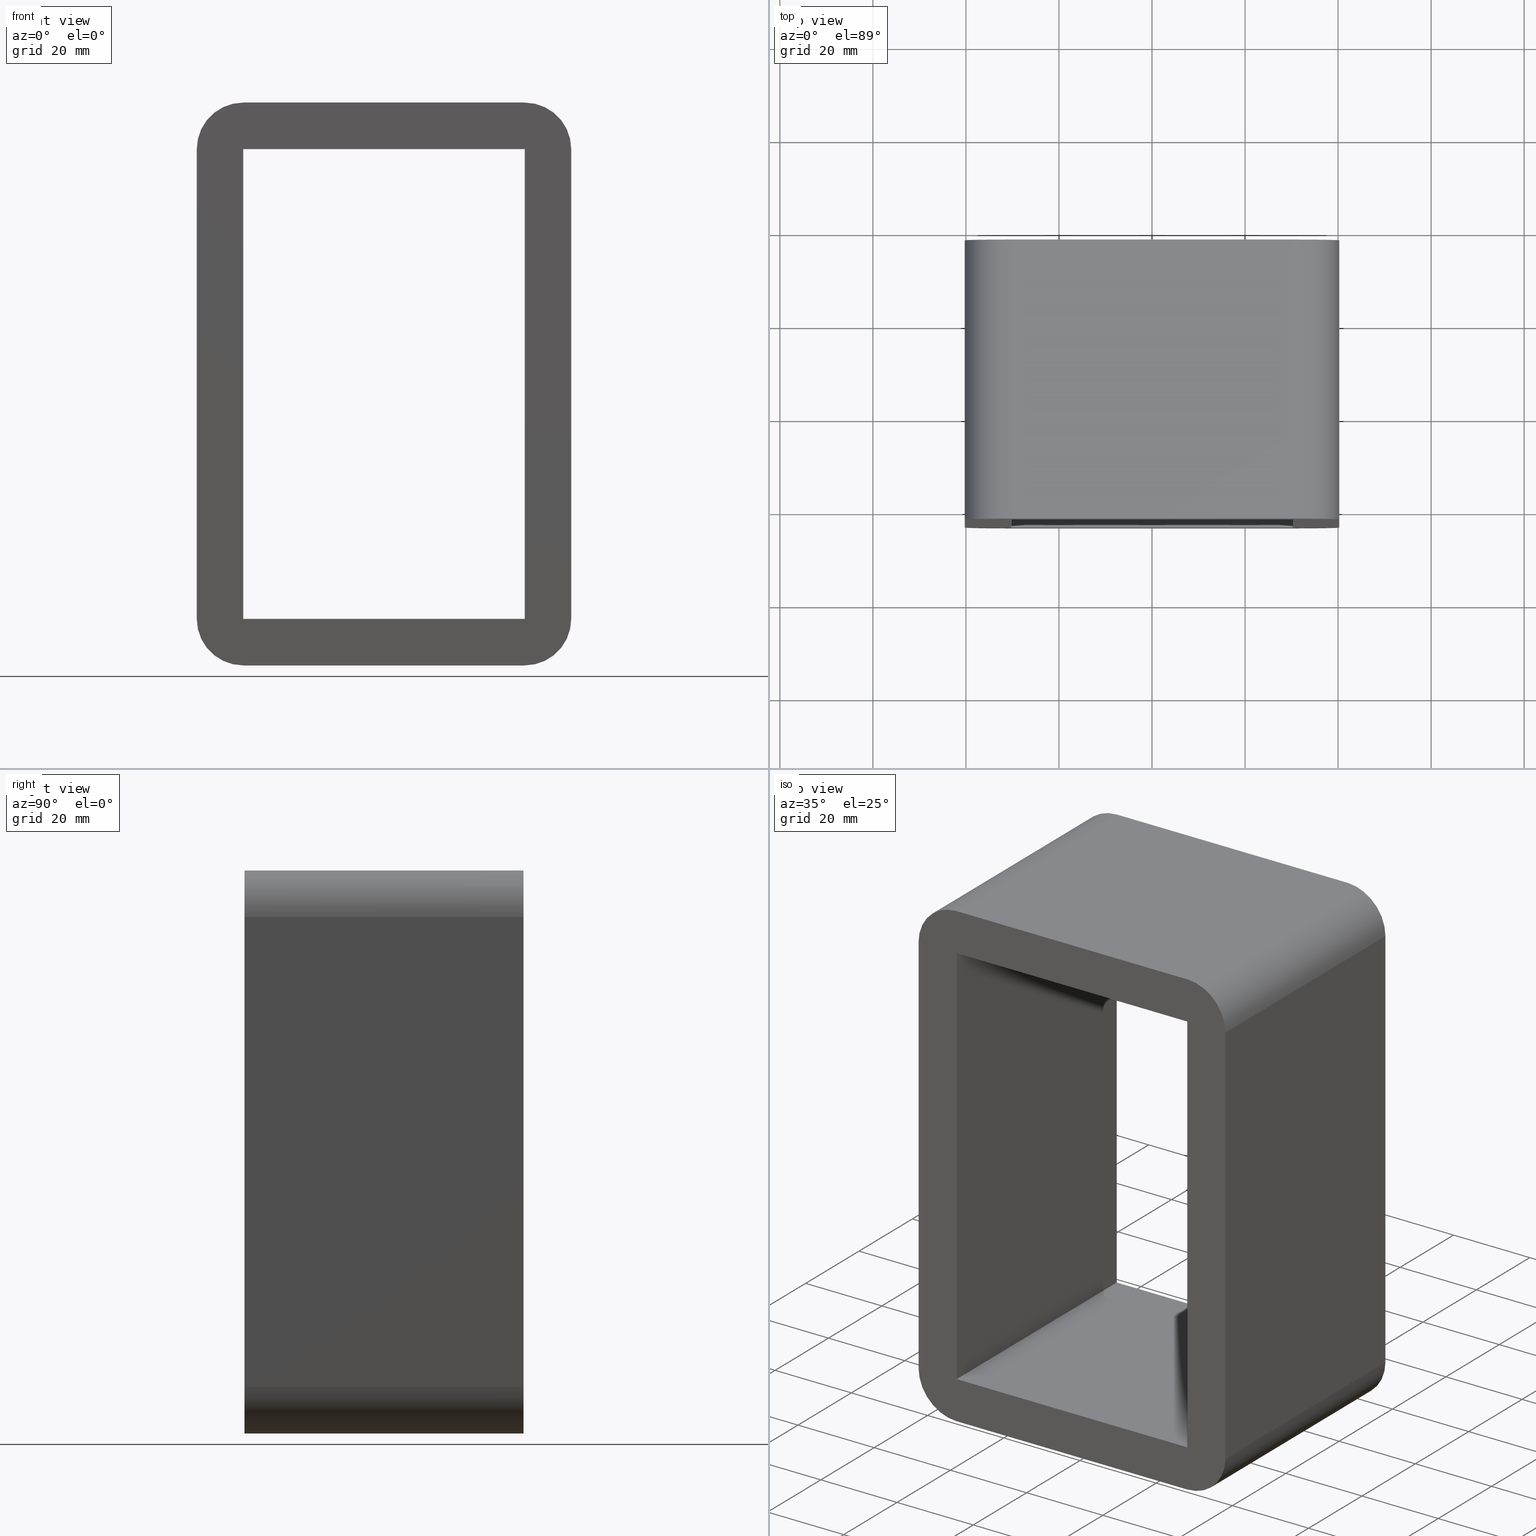
[diagram: canonical four-view strip — front | top / right | iso, engineering-drawing reading convention]
A machine part, canonical four-view strip (front | top / right | iso — engineering-drawing reading convention). The complete STEP part file that produces these views, byte-faithful:
ISO-10303-21;
HEADER;
/****************************************************************
 * Generated by software with PDElib inside                    *
 * PDElib Version v51a, created Wed 11/30/2011                  *
 * ITI Transcendata (http://www.transcendata.com/)              *
 ****************************************************************/
FILE_DESCRIPTION((''),'2;1');
FILE_NAME('C:\\RoxtecConfigurator\\CreatedFiles\\STEP\\S1X1.stp','2013-06-28T14:12:52',(''),(''),'Autodesk Inventor 2013','Autodesk Inventor 2013','');
FILE_SCHEMA(('AUTOMOTIVE_DESIGN { 1 0 10303 214 1 1 1 1 }'));
ENDSEC;
DATA;
#5=APPLICATION_CONTEXT('automotive design');
#6=APPLICATION_PROTOCOL_DEFINITION('International Standard','automotive_design',2001,#5);
#7=PRODUCT_CONTEXT('',#5,'mechanical');
#8=PRODUCT('roxtec S_SF_G','roxtec S_SF_G',$,(#7));
#9=PRODUCT_RELATED_PRODUCT_CATEGORY('part',$,(#8));
#10=PRODUCT_DEFINITION_FORMATION('',$,#8);
#11=PRODUCT_DEFINITION_CONTEXT('part definition',#5,'design');
#12=PRODUCT_DEFINITION('',$,#10,#11);
#18=(NAMED_UNIT(*)PLANE_ANGLE_UNIT()SI_UNIT($,.RADIAN.));
#19=DIMENSIONAL_EXPONENTS(0.0,0.0,0.0,0.0,0.0,0.0,0.0);
#20=PLANE_ANGLE_MEASURE_WITH_UNIT(PLANE_ANGLE_MEASURE(0.0174532925),#18);
#24=(CONVERSION_BASED_UNIT('DEGREE',#20)NAMED_UNIT(#19)PLANE_ANGLE_UNIT());
#28=(NAMED_UNIT(*)SI_UNIT($,.STERADIAN.)SOLID_ANGLE_UNIT());
#32=(LENGTH_UNIT()NAMED_UNIT(*)SI_UNIT(.MILLI.,.METRE.));
#34=UNCERTAINTY_MEASURE_WITH_UNIT(LENGTH_MEASURE(0.01),#32,'DISTANCE_ACCURACY_VALUE','');
#36=(GEOMETRIC_REPRESENTATION_CONTEXT(3)GLOBAL_UNCERTAINTY_ASSIGNED_CONTEXT((#34))GLOBAL_UNIT_ASSIGNED_CONTEXT((#24,#28,#32))REPRESENTATION_CONTEXT('None','None'));
#37=AXIS2_PLACEMENT_3D('',#38,#39,#40);
#38=CARTESIAN_POINT('',(0.0,0.0,0.0));
#39=DIRECTION('',(0.0,0.0,1.0));
#40=DIRECTION('',(1.0,0.0,0.0));
#41=SHAPE_REPRESENTATION('',(#37),#36);
#42=PRODUCT_DEFINITION_SHAPE('','',#12);
#43=SHAPE_DEFINITION_REPRESENTATION(#42,#41);
#49=(NAMED_UNIT(*)PLANE_ANGLE_UNIT()SI_UNIT($,.RADIAN.));
#50=DIMENSIONAL_EXPONENTS(0.0,0.0,0.0,0.0,0.0,0.0,0.0);
#51=PLANE_ANGLE_MEASURE_WITH_UNIT(PLANE_ANGLE_MEASURE(0.0174532925),#49);
#55=(CONVERSION_BASED_UNIT('DEGREE',#51)NAMED_UNIT(#50)PLANE_ANGLE_UNIT());
#59=(NAMED_UNIT(*)SI_UNIT($,.STERADIAN.)SOLID_ANGLE_UNIT());
#63=(LENGTH_UNIT()NAMED_UNIT(*)SI_UNIT(.MILLI.,.METRE.));
#65=UNCERTAINTY_MEASURE_WITH_UNIT(LENGTH_MEASURE(0.000001),#63,'DISTANCE_ACCURACY_VALUE','');
#67=(GEOMETRIC_REPRESENTATION_CONTEXT(3)GLOBAL_UNCERTAINTY_ASSIGNED_CONTEXT((#65))GLOBAL_UNIT_ASSIGNED_CONTEXT((#55,#59,#63))REPRESENTATION_CONTEXT('','3D'));
#68=CARTESIAN_POINT('',(30.250000000000004,0.0,-50.500000000000007));
#69=DIRECTION('',(0.0,1.0,0.0));
#70=DIRECTION('',(0.707106781186547,0.0,-0.707106781186547));
#71=AXIS2_PLACEMENT_3D('',#68,#69,#70);
#72=CYLINDRICAL_SURFACE('',#71,10.0);
#73=CARTESIAN_POINT('',(30.250000000000004,57.0,-60.500000000000007));
#74=VERTEX_POINT('',#73);
#75=CARTESIAN_POINT('',(40.25,57.0,-50.500000000000007));
#76=VERTEX_POINT('',#75);
#77=CARTESIAN_POINT('',(30.250000000000004,57.0,-50.500000000000007));
#78=DIRECTION('',(0.0,-1.0,0.0));
#79=DIRECTION('',(0.707106781186547,0.0,-0.707106781186547));
#80=AXIS2_PLACEMENT_3D('',#77,#78,#79);
#81=CIRCLE('',#80,9.999999999999998);
#82=EDGE_CURVE('',#74,#76,#81,.T.);
#83=ORIENTED_EDGE('',*,*,#82,.T.);
#84=CARTESIAN_POINT('',(40.25,-3.0,-50.500000000000007));
#85=VERTEX_POINT('',#84);
#86=CARTESIAN_POINT('',(40.25,57.0,-50.500000000000007));
#87=DIRECTION('',(0.0,-1.0,0.0));
#88=VECTOR('',#87,60.0);
#89=LINE('',#86,#88);
#90=EDGE_CURVE('',#76,#85,#89,.T.);
#91=ORIENTED_EDGE('',*,*,#90,.T.);
#92=CARTESIAN_POINT('',(30.250000000000004,-3.0,-60.500000000000007));
#93=VERTEX_POINT('',#92);
#94=CARTESIAN_POINT('',(30.250000000000004,-3.0,-50.500000000000007));
#95=DIRECTION('',(0.0,1.0,0.0));
#96=DIRECTION('',(0.707106781186547,0.0,-0.707106781186547));
#97=AXIS2_PLACEMENT_3D('',#94,#95,#96);
#98=CIRCLE('',#97,9.999999999999998);
#99=EDGE_CURVE('',#85,#93,#98,.T.);
#100=ORIENTED_EDGE('',*,*,#99,.T.);
#101=CARTESIAN_POINT('',(30.250000000000004,-3.0,-60.500000000000007));
#102=DIRECTION('',(0.0,1.0,0.0));
#103=VECTOR('',#102,60.0);
#104=LINE('',#101,#103);
#105=EDGE_CURVE('',#93,#74,#104,.T.);
#106=ORIENTED_EDGE('',*,*,#105,.T.);
#107=EDGE_LOOP('',(#83,#91,#100,#106));
#108=FACE_OUTER_BOUND('',#107,.T.);
#109=ADVANCED_FACE('',(#108),#72,.T.);
#110=CARTESIAN_POINT('',(0.0,-3.0,0.0));
#111=DIRECTION('',(0.0,1.0,0.0));
#112=DIRECTION('',(0.0,0.0,1.0));
#113=AXIS2_PLACEMENT_3D('',#110,#111,#112);
#114=PLANE('',#113);
#115=ORIENTED_EDGE('',*,*,#99,.F.);
#116=CARTESIAN_POINT('',(40.25,-3.0,50.500000000000007));
#117=VERTEX_POINT('',#116);
#118=CARTESIAN_POINT('',(40.25,-3.0,-50.500000000000007));
#119=DIRECTION('',(0.0,0.0,1.0));
#120=VECTOR('',#119,101.00000000000001);
#121=LINE('',#118,#120);
#122=EDGE_CURVE('',#85,#117,#121,.T.);
#123=ORIENTED_EDGE('',*,*,#122,.T.);
#124=CARTESIAN_POINT('',(30.250000000000004,-3.0,60.500000000000007));
#125=VERTEX_POINT('',#124);
#126=CARTESIAN_POINT('',(30.250000000000004,-3.0,50.500000000000007));
#127=DIRECTION('',(0.0,1.0,0.0));
#128=DIRECTION('',(0.707106781186547,0.0,0.707106781186547));
#129=AXIS2_PLACEMENT_3D('',#126,#127,#128);
#130=CIRCLE('',#129,9.999999999999998);
#131=EDGE_CURVE('',#125,#117,#130,.T.);
#132=ORIENTED_EDGE('',*,*,#131,.F.);
#133=CARTESIAN_POINT('',(-30.250000000000004,-3.0,60.500000000000007));
#134=VERTEX_POINT('',#133);
#135=CARTESIAN_POINT('',(30.25,-3.0,60.500000000000007));
#136=DIRECTION('',(-1.0,0.0,0.0));
#137=VECTOR('',#136,60.5);
#138=LINE('',#135,#137);
#139=EDGE_CURVE('',#125,#134,#138,.T.);
#140=ORIENTED_EDGE('',*,*,#139,.T.);
#141=CARTESIAN_POINT('',(-40.25,-3.0,50.500000000000007));
#142=VERTEX_POINT('',#141);
#143=CARTESIAN_POINT('',(-30.250000000000004,-3.0,50.500000000000007));
#144=DIRECTION('',(0.0,1.0,0.0));
#145=DIRECTION('',(-0.707106781186547,0.0,0.707106781186547));
#146=AXIS2_PLACEMENT_3D('',#143,#144,#145);
#147=CIRCLE('',#146,9.999999999999998);
#148=EDGE_CURVE('',#142,#134,#147,.T.);
#149=ORIENTED_EDGE('',*,*,#148,.F.);
#150=CARTESIAN_POINT('',(-40.25,-3.0,-50.500000000000007));
#151=VERTEX_POINT('',#150);
#152=CARTESIAN_POINT('',(-40.25,-3.0,50.500000000000007));
#153=DIRECTION('',(0.0,0.0,-1.0));
#154=VECTOR('',#153,101.00000000000001);
#155=LINE('',#152,#154);
#156=EDGE_CURVE('',#142,#151,#155,.T.);
#157=ORIENTED_EDGE('',*,*,#156,.T.);
#158=CARTESIAN_POINT('',(-30.250000000000004,-3.0,-60.500000000000007));
#159=VERTEX_POINT('',#158);
#160=CARTESIAN_POINT('',(-30.250000000000004,-3.0,-50.500000000000007));
#161=DIRECTION('',(0.0,1.0,0.0));
#162=DIRECTION('',(-0.707106781186547,0.0,-0.707106781186547));
#163=AXIS2_PLACEMENT_3D('',#160,#161,#162);
#164=CIRCLE('',#163,9.999999999999998);
#165=EDGE_CURVE('',#159,#151,#164,.T.);
#166=ORIENTED_EDGE('',*,*,#165,.F.);
#167=CARTESIAN_POINT('',(-30.25,-3.0,-60.500000000000007));
#168=DIRECTION('',(1.0,0.0,0.0));
#169=VECTOR('',#168,60.5);
#170=LINE('',#167,#169);
#171=EDGE_CURVE('',#159,#93,#170,.T.);
#172=ORIENTED_EDGE('',*,*,#171,.T.);
#173=EDGE_LOOP('',(#115,#123,#132,#140,#149,#157,#166,#172));
#174=FACE_OUTER_BOUND('',#173,.T.);
#175=CARTESIAN_POINT('',(30.250000000000004,-3.0,50.500000000000007));
#176=VERTEX_POINT('',#175);
#177=CARTESIAN_POINT('',(30.250000000000004,-3.0,-50.500000000000007));
#178=VERTEX_POINT('',#177);
#179=CARTESIAN_POINT('',(30.250000000000004,-3.0,50.500000000000007));
#180=DIRECTION('',(0.0,0.0,-1.0));
#181=VECTOR('',#180,101.00000000000003);
#182=LINE('',#179,#181);
#183=EDGE_CURVE('',#176,#178,#182,.T.);
#184=ORIENTED_EDGE('',*,*,#183,.T.);
#185=CARTESIAN_POINT('',(-30.250000000000004,-3.0,-50.500000000000007));
#186=VERTEX_POINT('',#185);
#187=CARTESIAN_POINT('',(30.250000000000004,-3.0,-50.500000000000007));
#188=DIRECTION('',(-1.0,0.0,0.0));
#189=VECTOR('',#188,60.500000000000014);
#190=LINE('',#187,#189);
#191=EDGE_CURVE('',#178,#186,#190,.T.);
#192=ORIENTED_EDGE('',*,*,#191,.T.);
#193=CARTESIAN_POINT('',(-30.250000000000004,-3.0,50.500000000000007));
#194=VERTEX_POINT('',#193);
#195=CARTESIAN_POINT('',(-30.25,-3.0,-50.500000000000007));
#196=DIRECTION('',(0.0,0.0,1.0));
#197=VECTOR('',#196,101.00000000000003);
#198=LINE('',#195,#197);
#199=EDGE_CURVE('',#186,#194,#198,.T.);
#200=ORIENTED_EDGE('',*,*,#199,.T.);
#201=CARTESIAN_POINT('',(-30.250000000000004,-3.0,50.500000000000007));
#202=DIRECTION('',(1.0,0.0,0.0));
#203=VECTOR('',#202,60.500000000000014);
#204=LINE('',#201,#203);
#205=EDGE_CURVE('',#194,#176,#204,.T.);
#206=ORIENTED_EDGE('',*,*,#205,.T.);
#207=EDGE_LOOP('',(#184,#192,#200,#206));
#208=FACE_BOUND('',#207,.T.);
#209=ADVANCED_FACE('',(#174,#208),#114,.F.);
#210=CARTESIAN_POINT('',(40.25,0.0,60.500000000000007));
#211=DIRECTION('',(1.0,0.0,0.0));
#212=DIRECTION('',(0.0,0.0,-1.0));
#213=AXIS2_PLACEMENT_3D('',#210,#211,#212);
#214=PLANE('',#213);
#215=ORIENTED_EDGE('',*,*,#90,.F.);
#216=CARTESIAN_POINT('',(40.25,57.0,50.500000000000007));
#217=VERTEX_POINT('',#216);
#218=CARTESIAN_POINT('',(40.25,57.0,50.500000000000007));
#219=DIRECTION('',(0.0,0.0,-1.0));
#220=VECTOR('',#219,101.00000000000001);
#221=LINE('',#218,#220);
#222=EDGE_CURVE('',#217,#76,#221,.T.);
#223=ORIENTED_EDGE('',*,*,#222,.F.);
#224=CARTESIAN_POINT('',(40.25,-3.0,50.500000000000007));
#225=DIRECTION('',(0.0,1.0,0.0));
#226=VECTOR('',#225,60.0);
#227=LINE('',#224,#226);
#228=EDGE_CURVE('',#117,#217,#227,.T.);
#229=ORIENTED_EDGE('',*,*,#228,.F.);
#230=ORIENTED_EDGE('',*,*,#122,.F.);
#231=EDGE_LOOP('',(#215,#223,#229,#230));
#232=FACE_OUTER_BOUND('',#231,.T.);
#233=ADVANCED_FACE('',(#232),#214,.T.);
#234=CARTESIAN_POINT('',(30.250000000000004,0.0,50.500000000000007));
#235=DIRECTION('',(0.0,-1.0,0.0));
#236=DIRECTION('',(0.707106781186547,0.0,0.707106781186547));
#237=AXIS2_PLACEMENT_3D('',#234,#235,#236);
#238=CYLINDRICAL_SURFACE('',#237,10.0);
#239=ORIENTED_EDGE('',*,*,#131,.T.);
#240=ORIENTED_EDGE('',*,*,#228,.T.);
#241=CARTESIAN_POINT('',(30.250000000000004,57.0,60.500000000000007));
#242=VERTEX_POINT('',#241);
#243=CARTESIAN_POINT('',(30.250000000000004,57.0,50.500000000000007));
#244=DIRECTION('',(0.0,-1.0,0.0));
#245=DIRECTION('',(0.707106781186547,0.0,0.707106781186547));
#246=AXIS2_PLACEMENT_3D('',#243,#244,#245);
#247=CIRCLE('',#246,9.999999999999998);
#248=EDGE_CURVE('',#217,#242,#247,.T.);
#249=ORIENTED_EDGE('',*,*,#248,.T.);
#250=CARTESIAN_POINT('',(30.250000000000004,57.0,60.500000000000007));
#251=DIRECTION('',(0.0,-1.0,0.0));
#252=VECTOR('',#251,60.0);
#253=LINE('',#250,#252);
#254=EDGE_CURVE('',#242,#125,#253,.T.);
#255=ORIENTED_EDGE('',*,*,#254,.T.);
#256=EDGE_LOOP('',(#239,#240,#249,#255));
#257=FACE_OUTER_BOUND('',#256,.T.);
#258=ADVANCED_FACE('',(#257),#238,.T.);
#259=CARTESIAN_POINT('',(-30.250000000000004,0.0,-50.500000000000007));
#260=DIRECTION('',(0.0,1.0,0.0));
#261=DIRECTION('',(-0.707106781186547,0.0,-0.707106781186547));
#262=AXIS2_PLACEMENT_3D('',#259,#260,#261);
#263=CYLINDRICAL_SURFACE('',#262,10.0);
#264=CARTESIAN_POINT('',(-40.25,57.0,-50.500000000000007));
#265=VERTEX_POINT('',#264);
#266=CARTESIAN_POINT('',(-30.250000000000004,57.0,-60.500000000000007));
#267=VERTEX_POINT('',#266);
#268=CARTESIAN_POINT('',(-30.250000000000004,57.0,-50.500000000000007));
#269=DIRECTION('',(0.0,-1.0,0.0));
#270=DIRECTION('',(-0.707106781186547,0.0,-0.707106781186547));
#271=AXIS2_PLACEMENT_3D('',#268,#269,#270);
#272=CIRCLE('',#271,9.999999999999998);
#273=EDGE_CURVE('',#265,#267,#272,.T.);
#274=ORIENTED_EDGE('',*,*,#273,.T.);
#275=CARTESIAN_POINT('',(-30.250000000000004,57.0,-60.500000000000007));
#276=DIRECTION('',(0.0,-1.0,0.0));
#277=VECTOR('',#276,60.0);
#278=LINE('',#275,#277);
#279=EDGE_CURVE('',#267,#159,#278,.T.);
#280=ORIENTED_EDGE('',*,*,#279,.T.);
#281=ORIENTED_EDGE('',*,*,#165,.T.);
#282=CARTESIAN_POINT('',(-40.25,-3.0,-50.500000000000007));
#283=DIRECTION('',(0.0,1.0,0.0));
#284=VECTOR('',#283,60.0);
#285=LINE('',#282,#284);
#286=EDGE_CURVE('',#151,#265,#285,.T.);
#287=ORIENTED_EDGE('',*,*,#286,.T.);
#288=EDGE_LOOP('',(#274,#280,#281,#287));
#289=FACE_OUTER_BOUND('',#288,.T.);
#290=ADVANCED_FACE('',(#289),#263,.T.);
#291=CARTESIAN_POINT('',(-40.25,0.0,-60.500000000000007));
#292=DIRECTION('',(-1.0,0.0,0.0));
#293=DIRECTION('',(0.0,0.0,1.0));
#294=AXIS2_PLACEMENT_3D('',#291,#292,#293);
#295=PLANE('',#294);
#296=ORIENTED_EDGE('',*,*,#286,.F.);
#297=ORIENTED_EDGE('',*,*,#156,.F.);
#298=CARTESIAN_POINT('',(-40.25,57.0,50.500000000000007));
#299=VERTEX_POINT('',#298);
#300=CARTESIAN_POINT('',(-40.25,57.0,50.500000000000007));
#301=DIRECTION('',(0.0,-1.0,0.0));
#302=VECTOR('',#301,60.0);
#303=LINE('',#300,#302);
#304=EDGE_CURVE('',#299,#142,#303,.T.);
#305=ORIENTED_EDGE('',*,*,#304,.F.);
#306=CARTESIAN_POINT('',(-40.25,57.0,-50.500000000000007));
#307=DIRECTION('',(0.0,0.0,1.0));
#308=VECTOR('',#307,101.00000000000001);
#309=LINE('',#306,#308);
#310=EDGE_CURVE('',#265,#299,#309,.T.);
#311=ORIENTED_EDGE('',*,*,#310,.F.);
#312=EDGE_LOOP('',(#296,#297,#305,#311));
#313=FACE_OUTER_BOUND('',#312,.T.);
#314=ADVANCED_FACE('',(#313),#295,.T.);
#315=CARTESIAN_POINT('',(-30.250000000000004,0.0,50.500000000000007));
#316=DIRECTION('',(0.0,1.0,0.0));
#317=DIRECTION('',(-0.707106781186547,0.0,0.707106781186547));
#318=AXIS2_PLACEMENT_3D('',#315,#316,#317);
#319=CYLINDRICAL_SURFACE('',#318,10.0);
#320=CARTESIAN_POINT('',(-30.250000000000004,57.0,60.500000000000007));
#321=VERTEX_POINT('',#320);
#322=CARTESIAN_POINT('',(-30.250000000000004,57.0,50.500000000000007));
#323=DIRECTION('',(0.0,-1.0,0.0));
#324=DIRECTION('',(-0.707106781186547,0.0,0.707106781186547));
#325=AXIS2_PLACEMENT_3D('',#322,#323,#324);
#326=CIRCLE('',#325,9.999999999999998);
#327=EDGE_CURVE('',#321,#299,#326,.T.);
#328=ORIENTED_EDGE('',*,*,#327,.T.);
#329=ORIENTED_EDGE('',*,*,#304,.T.);
#330=ORIENTED_EDGE('',*,*,#148,.T.);
#331=CARTESIAN_POINT('',(-30.250000000000004,-3.0,60.500000000000007));
#332=DIRECTION('',(0.0,1.0,0.0));
#333=VECTOR('',#332,60.0);
#334=LINE('',#331,#333);
#335=EDGE_CURVE('',#134,#321,#334,.T.);
#336=ORIENTED_EDGE('',*,*,#335,.T.);
#337=EDGE_LOOP('',(#328,#329,#330,#336));
#338=FACE_OUTER_BOUND('',#337,.T.);
#339=ADVANCED_FACE('',(#338),#319,.T.);
#340=CARTESIAN_POINT('',(-40.25,0.0,60.500000000000007));
#341=DIRECTION('',(0.0,0.0,1.0));
#342=DIRECTION('',(1.0,0.0,0.0));
#343=AXIS2_PLACEMENT_3D('',#340,#341,#342);
#344=PLANE('',#343);
#345=ORIENTED_EDGE('',*,*,#254,.F.);
#346=CARTESIAN_POINT('',(-30.25,57.0,60.500000000000007));
#347=DIRECTION('',(1.0,0.0,0.0));
#348=VECTOR('',#347,60.5);
#349=LINE('',#346,#348);
#350=EDGE_CURVE('',#321,#242,#349,.T.);
#351=ORIENTED_EDGE('',*,*,#350,.F.);
#352=ORIENTED_EDGE('',*,*,#335,.F.);
#353=ORIENTED_EDGE('',*,*,#139,.F.);
#354=EDGE_LOOP('',(#345,#351,#352,#353));
#355=FACE_OUTER_BOUND('',#354,.T.);
#356=ADVANCED_FACE('',(#355),#344,.T.);
#357=CARTESIAN_POINT('',(30.250000000000004,0.0,50.500000000000007));
#358=DIRECTION('',(1.0,0.0,0.0));
#359=DIRECTION('',(0.0,0.0,-1.0));
#360=AXIS2_PLACEMENT_3D('',#357,#358,#359);
#361=PLANE('',#360);
#362=CARTESIAN_POINT('',(30.250000000000004,57.0,-50.500000000000007));
#363=VERTEX_POINT('',#362);
#364=CARTESIAN_POINT('',(30.250000000000004,57.0,-50.500000000000007));
#365=DIRECTION('',(0.0,-1.0,0.0));
#366=VECTOR('',#365,60.0);
#367=LINE('',#364,#366);
#368=EDGE_CURVE('',#363,#178,#367,.T.);
#369=ORIENTED_EDGE('',*,*,#368,.T.);
#370=ORIENTED_EDGE('',*,*,#183,.F.);
#371=CARTESIAN_POINT('',(30.250000000000004,57.0,50.500000000000007));
#372=VERTEX_POINT('',#371);
#373=CARTESIAN_POINT('',(30.250000000000004,-3.0,50.500000000000007));
#374=DIRECTION('',(0.0,1.0,0.0));
#375=VECTOR('',#374,60.0);
#376=LINE('',#373,#375);
#377=EDGE_CURVE('',#176,#372,#376,.T.);
#378=ORIENTED_EDGE('',*,*,#377,.T.);
#379=CARTESIAN_POINT('',(30.250000000000004,57.0,-50.500000000000014));
#380=DIRECTION('',(0.0,0.0,1.0));
#381=VECTOR('',#380,101.00000000000003);
#382=LINE('',#379,#381);
#383=EDGE_CURVE('',#363,#372,#382,.T.);
#384=ORIENTED_EDGE('',*,*,#383,.F.);
#385=EDGE_LOOP('',(#369,#370,#378,#384));
#386=FACE_OUTER_BOUND('',#385,.T.);
#387=ADVANCED_FACE('',(#386),#361,.F.);
#388=CARTESIAN_POINT('',(-30.25,0.0,50.500000000000007));
#389=DIRECTION('',(0.0,0.0,1.0));
#390=DIRECTION('',(1.0,0.0,0.0));
#391=AXIS2_PLACEMENT_3D('',#388,#389,#390);
#392=PLANE('',#391);
#393=ORIENTED_EDGE('',*,*,#377,.F.);
#394=ORIENTED_EDGE('',*,*,#205,.F.);
#395=CARTESIAN_POINT('',(-30.250000000000004,57.0,50.500000000000007));
#396=VERTEX_POINT('',#395);
#397=CARTESIAN_POINT('',(-30.25,-3.0,50.500000000000007));
#398=DIRECTION('',(0.0,1.0,0.0));
#399=VECTOR('',#398,60.0);
#400=LINE('',#397,#399);
#401=EDGE_CURVE('',#194,#396,#400,.T.);
#402=ORIENTED_EDGE('',*,*,#401,.T.);
#403=CARTESIAN_POINT('',(30.250000000000007,57.0,50.500000000000007));
#404=DIRECTION('',(-1.0,0.0,0.0));
#405=VECTOR('',#404,60.500000000000014);
#406=LINE('',#403,#405);
#407=EDGE_CURVE('',#372,#396,#406,.T.);
#408=ORIENTED_EDGE('',*,*,#407,.F.);
#409=EDGE_LOOP('',(#393,#394,#402,#408));
#410=FACE_OUTER_BOUND('',#409,.T.);
#411=ADVANCED_FACE('',(#410),#392,.F.);
#412=CARTESIAN_POINT('',(-30.25,0.0,-50.500000000000007));
#413=DIRECTION('',(-1.0,0.0,0.0));
#414=DIRECTION('',(0.0,0.0,1.0));
#415=AXIS2_PLACEMENT_3D('',#412,#413,#414);
#416=PLANE('',#415);
#417=ORIENTED_EDGE('',*,*,#401,.F.);
#418=ORIENTED_EDGE('',*,*,#199,.F.);
#419=CARTESIAN_POINT('',(-30.250000000000004,57.0,-50.500000000000007));
#420=VERTEX_POINT('',#419);
#421=CARTESIAN_POINT('',(-30.25,-3.0,-50.500000000000007));
#422=DIRECTION('',(0.0,1.0,0.0));
#423=VECTOR('',#422,60.0);
#424=LINE('',#421,#423);
#425=EDGE_CURVE('',#186,#420,#424,.T.);
#426=ORIENTED_EDGE('',*,*,#425,.T.);
#427=CARTESIAN_POINT('',(-30.25,57.0,50.500000000000014));
#428=DIRECTION('',(0.0,0.0,-1.0));
#429=VECTOR('',#428,101.00000000000003);
#430=LINE('',#427,#429);
#431=EDGE_CURVE('',#396,#420,#430,.T.);
#432=ORIENTED_EDGE('',*,*,#431,.F.);
#433=EDGE_LOOP('',(#417,#418,#426,#432));
#434=FACE_OUTER_BOUND('',#433,.T.);
#435=ADVANCED_FACE('',(#434),#416,.F.);
#436=CARTESIAN_POINT('',(30.250000000000004,0.0,-50.500000000000007));
#437=DIRECTION('',(0.0,0.0,-1.0));
#438=DIRECTION('',(-1.0,0.0,0.0));
#439=AXIS2_PLACEMENT_3D('',#436,#437,#438);
#440=PLANE('',#439);
#441=ORIENTED_EDGE('',*,*,#425,.F.);
#442=ORIENTED_EDGE('',*,*,#191,.F.);
#443=ORIENTED_EDGE('',*,*,#368,.F.);
#444=CARTESIAN_POINT('',(-30.250000000000007,57.0,-50.500000000000007));
#445=DIRECTION('',(1.0,0.0,0.0));
#446=VECTOR('',#445,60.500000000000014);
#447=LINE('',#444,#446);
#448=EDGE_CURVE('',#420,#363,#447,.T.);
#449=ORIENTED_EDGE('',*,*,#448,.F.);
#450=EDGE_LOOP('',(#441,#442,#443,#449));
#451=FACE_OUTER_BOUND('',#450,.T.);
#452=ADVANCED_FACE('',(#451),#440,.F.);
#453=CARTESIAN_POINT('',(40.25,0.0,-60.500000000000007));
#454=DIRECTION('',(0.0,0.0,-1.0));
#455=DIRECTION('',(-1.0,0.0,0.0));
#456=AXIS2_PLACEMENT_3D('',#453,#454,#455);
#457=PLANE('',#456);
#458=ORIENTED_EDGE('',*,*,#105,.F.);
#459=ORIENTED_EDGE('',*,*,#171,.F.);
#460=ORIENTED_EDGE('',*,*,#279,.F.);
#461=CARTESIAN_POINT('',(30.25,57.0,-60.500000000000007));
#462=DIRECTION('',(-1.0,0.0,0.0));
#463=VECTOR('',#462,60.5);
#464=LINE('',#461,#463);
#465=EDGE_CURVE('',#74,#267,#464,.T.);
#466=ORIENTED_EDGE('',*,*,#465,.F.);
#467=EDGE_LOOP('',(#458,#459,#460,#466));
#468=FACE_OUTER_BOUND('',#467,.T.);
#469=ADVANCED_FACE('',(#468),#457,.T.);
#470=CARTESIAN_POINT('',(0.0,57.0,0.0));
#471=DIRECTION('',(0.0,1.0,0.0));
#472=DIRECTION('',(0.0,0.0,1.0));
#473=AXIS2_PLACEMENT_3D('',#470,#471,#472);
#474=PLANE('',#473);
#475=ORIENTED_EDGE('',*,*,#82,.F.);
#476=ORIENTED_EDGE('',*,*,#465,.T.);
#477=ORIENTED_EDGE('',*,*,#273,.F.);
#478=ORIENTED_EDGE('',*,*,#310,.T.);
#479=ORIENTED_EDGE('',*,*,#327,.F.);
#480=ORIENTED_EDGE('',*,*,#350,.T.);
#481=ORIENTED_EDGE('',*,*,#248,.F.);
#482=ORIENTED_EDGE('',*,*,#222,.T.);
#483=EDGE_LOOP('',(#475,#476,#477,#478,#479,#480,#481,#482));
#484=FACE_OUTER_BOUND('',#483,.T.);
#485=ORIENTED_EDGE('',*,*,#383,.T.);
#486=ORIENTED_EDGE('',*,*,#407,.T.);
#487=ORIENTED_EDGE('',*,*,#431,.T.);
#488=ORIENTED_EDGE('',*,*,#448,.T.);
#489=EDGE_LOOP('',(#485,#486,#487,#488));
#490=FACE_BOUND('',#489,.T.);
#491=ADVANCED_FACE('',(#484,#490),#474,.T.);
#492=CLOSED_SHELL('',(#109,#209,#233,#258,#290,#314,#339,#356,#387,#411,#435,#452,#469,#491));
#493=MANIFOLD_SOLID_BREP('Solid1',#492);
#494=COLOUR_RGB('Silicon Nitride - Polished',0.800000011920929,0.796078443527222,0.701960802078247);
#495=FILL_AREA_STYLE_COLOUR('Silicon Nitride - Polished',#494);
#496=FILL_AREA_STYLE('Silicon Nitride - Polished',(#495));
#497=SURFACE_STYLE_FILL_AREA(#496);
#498=SURFACE_SIDE_STYLE('Silicon Nitride - Polished',(#497));
#499=SURFACE_STYLE_USAGE(.BOTH.,#498);
#500=PRESENTATION_STYLE_ASSIGNMENT((#499));
#501=STYLED_ITEM('',(#500),#493);
#502=MECHANICAL_DESIGN_GEOMETRIC_PRESENTATION_REPRESENTATION('',(#501),#36);
#503=ADVANCED_BREP_SHAPE_REPRESENTATION('ABSR',(#493),#36);
#504=SHAPE_REPRESENTATION_RELATIONSHIP('SRR','None',#503,#41);
ENDSEC;
END-ISO-10303-21;
